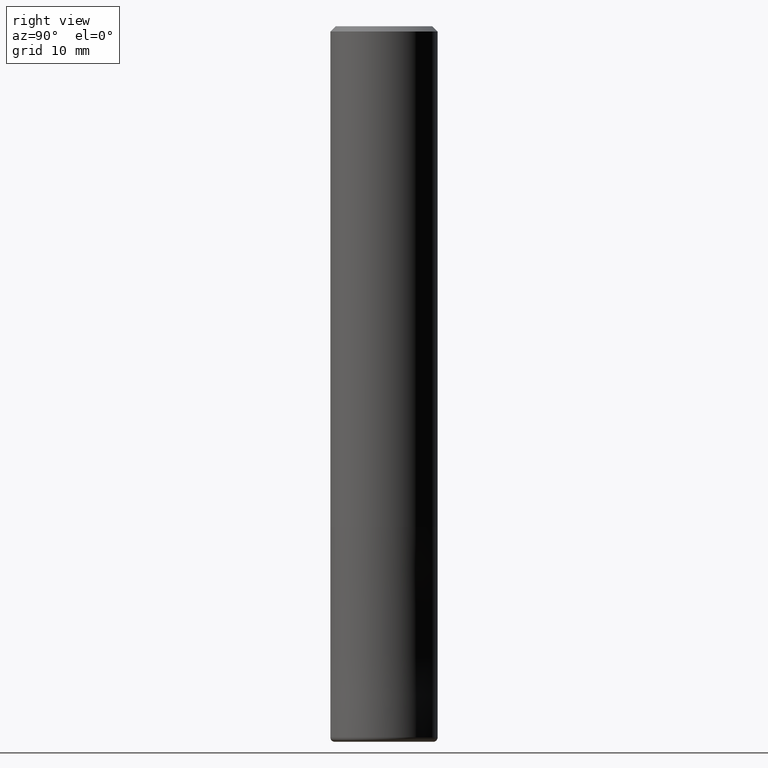
[diagram: clean part render]
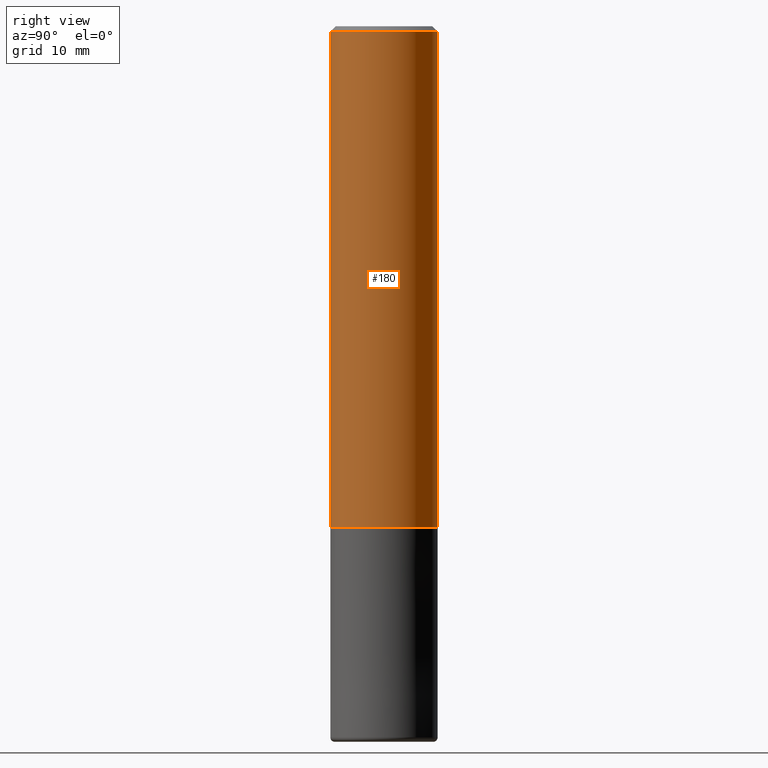
[diagram: same view with one face highlighted and labeled with its STEP entity id]
A machine part, right view. The second image highlights one B-rep face of the part: STEP entity #180.
In plain terms, the highlighted cylindrical surface (partial cylindrical patch) has radius 6 mm, axis along (-0, -0, 1).
Its self-contained STEP definition (entity closure, byte-faithful):
#112=EDGE_CURVE('',#206,#154,#273,.T.);
#116=EDGE_CURVE('',#206,#122,#277,.T.);
#120=VERTEX_POINT('',#281);
#122=VERTEX_POINT('',#283);
#124=EDGE_CURVE('',#120,#122,#285,.T.);
#154=VERTEX_POINT('',#322);
#180=ADVANCED_FACE('',(#351),#352,.T.);
#206=VERTEX_POINT('',#381);
#244=EDGE_CURVE('',#154,#120,#425,.T.);
#273=LINE('',#450,#451);
#277=CIRCLE('',#457,6.0);
#281=CARTESIAN_POINT('',(7.34763812293426E-016,-6.0,-56.0));
#283=CARTESIAN_POINT('',(7.34763812293426E-016,-6.0,-0.600000000000001));
#285=LINE('',#465,#466);
#322=CARTESIAN_POINT('',(0.0,6.0,-56.0));
#351=FACE_OUTER_BOUND('',#549,.T.);
#352=CYLINDRICAL_SURFACE('',#550,6.0);
#381=CARTESIAN_POINT('',(0.0,6.0,-0.600000000000001));
#425=CIRCLE('',#638,6.0);
#450=CARTESIAN_POINT('',(-7.34763812293426E-016,6.0,-28.3));
#451=VECTOR('',#649,1.0);
#457=AXIS2_PLACEMENT_3D('',#653,#654,#655);
#465=CARTESIAN_POINT('',(7.34763812293426E-016,-6.0,-28.3));
#466=VECTOR('',#657,1.0);
#549=EDGE_LOOP('',(#749,#750,#751,#752));
#550=AXIS2_PLACEMENT_3D('',#753,#754,#755);
#638=AXIS2_PLACEMENT_3D('',#847,#848,#849);
#649=DIRECTION('',(0.0,0.0,-1.0));
#653=CARTESIAN_POINT('',(0.0,0.0,-0.600000000000001));
#654=DIRECTION('',(0.0,0.0,-1.0));
#655=DIRECTION('',(0.0,1.0,0.0));
#657=DIRECTION('',(-0.0,-0.0,1.0));
#749=ORIENTED_EDGE('',*,*,#112,.F.);
#750=ORIENTED_EDGE('',*,*,#116,.T.);
#751=ORIENTED_EDGE('',*,*,#124,.F.);
#752=ORIENTED_EDGE('',*,*,#244,.F.);
#753=CARTESIAN_POINT('',(0.0,0.0,-28.3));
#754=DIRECTION('',(-0.0,-0.0,1.0));
#755=DIRECTION('',(0.0,1.0,0.0));
#847=CARTESIAN_POINT('',(0.0,0.0,-56.0));
#848=DIRECTION('',(0.0,0.0,-1.0));
#849=DIRECTION('',(0.0,1.0,0.0));